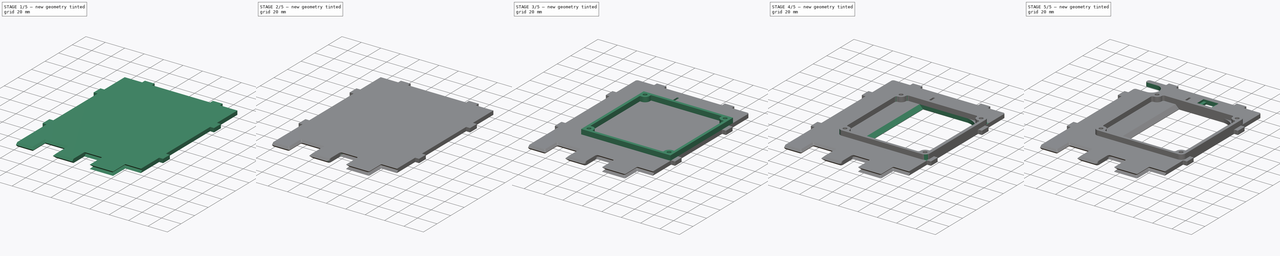
[diagram: build sequence overview — one tinted view per stage of 5, left to right]
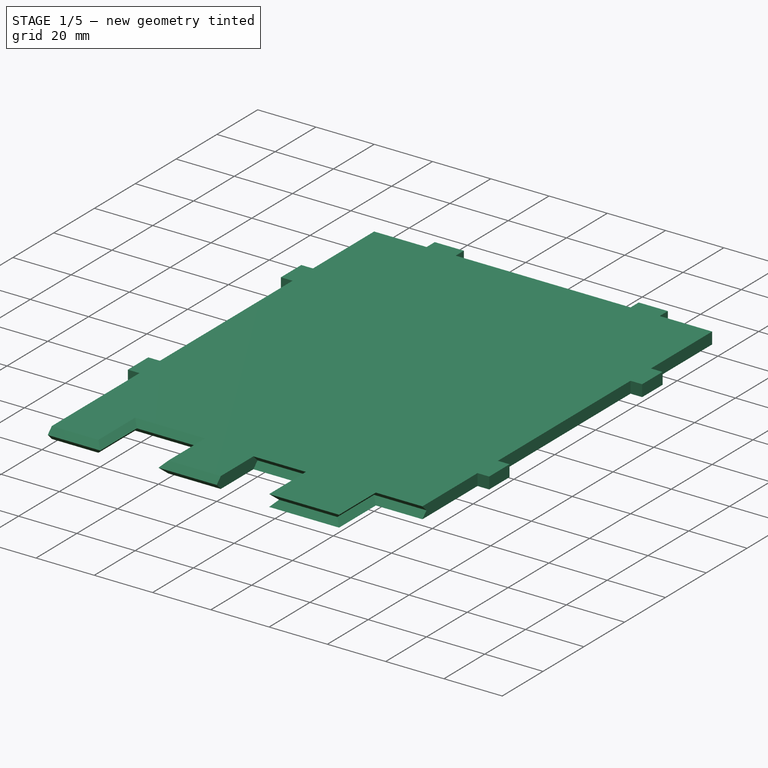
[diagram: stage 1 of 5 — iso view after this stage's code; geometry added in this stage tinted green]
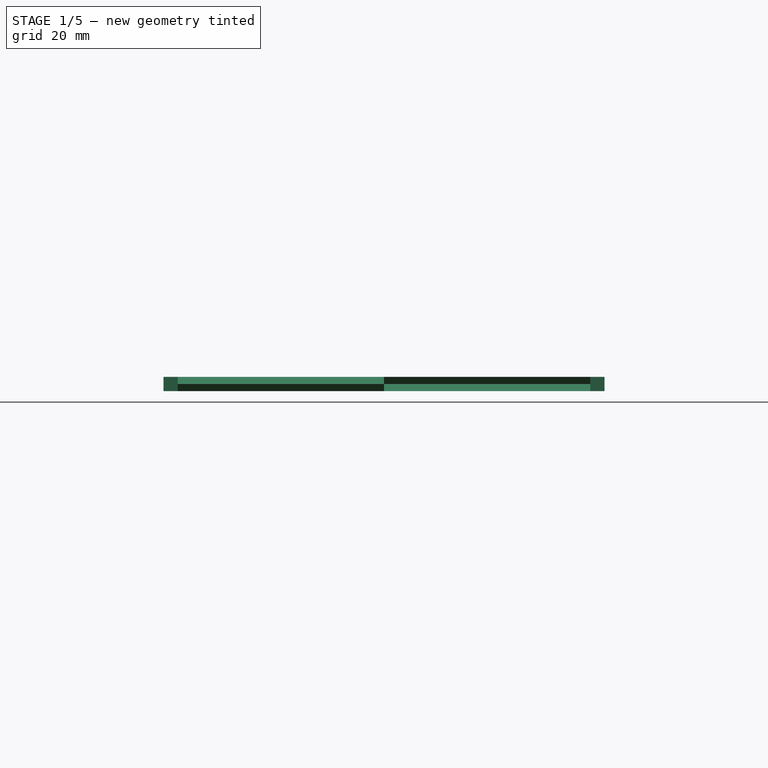
[diagram: stage 1 of 5 — front view after this stage's code; geometry added in this stage tinted green]
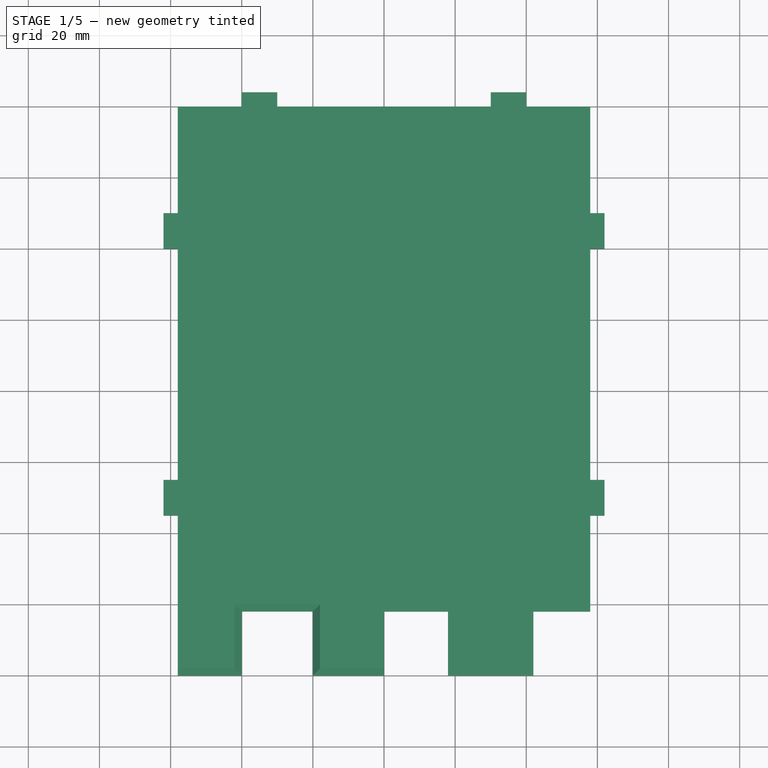
[diagram: stage 1 of 5 — top view after this stage's code; geometry added in this stage tinted green]
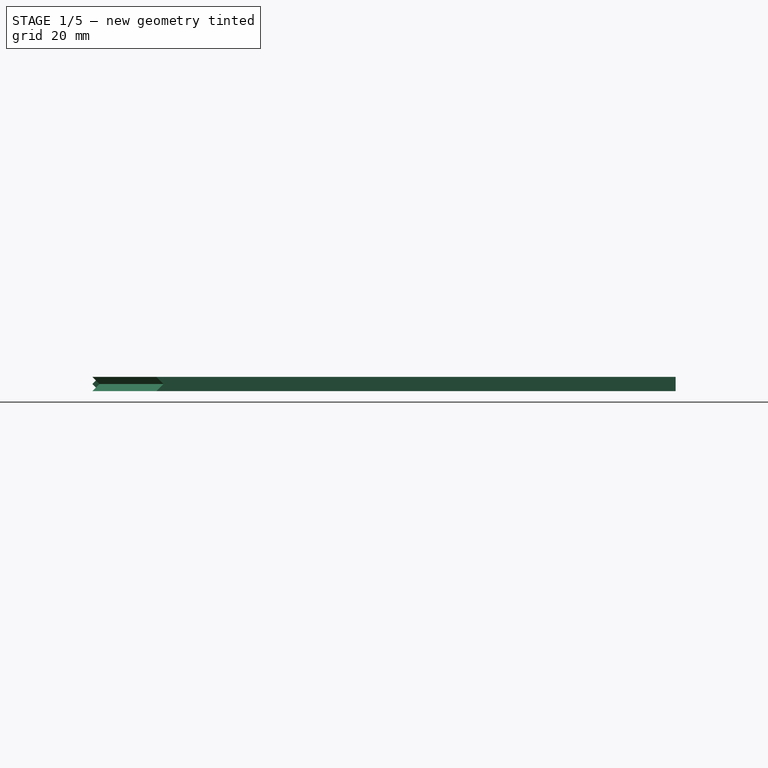
[diagram: stage 1 of 5 — right view after this stage's code; geometry added in this stage tinted green]
FCSTD DOCUMENT  (FreeCAD 0.18R16131 (Git))
Label: HBlock3_1
License: All rights reserved
LicenseURL: http://en.wikipedia.org/wiki/All_rights_reserved
objects: Sketcher::SketchObject×12, PartDesign::Fillet×10, PartDesign::Pocket×7, PartDesign::Plane×3, PartDesign::Pad×2, PartDesign::SubtractiveLoft×1, PartDesign::Chamfer×1, PartDesign::Body×1, App::Part×1
note: 47 computed .brp shape members not serialized (recipe doc carries the construction recipe); baked Part::Feature solids carry a one-line shape summary decoded from their .brp

FEATURE [Sketcher::SketchObject] Sketch
  MapMode = 5
  Support = -> [XY_Plane001]
  sketch-geometry (4):
    g0: LineSegment StartX=-62 StartY=0 StartZ=0 EndX=62 EndY=0 EndZ=0
    g1: LineSegment StartX=62 StartY=0 StartZ=0 EndX=62 EndY=164 EndZ=0
    g2: LineSegment StartX=62 StartY=164 StartZ=0 EndX=-62 EndY=164 EndZ=0
    g3: LineSegment StartX=-62 StartY=164 StartZ=0 EndX=-62 EndY=0 EndZ=0
  constraints (11):
    c: Coincident(g0,g1)
    c: Coincident(g1,g2)
    c: Coincident(g2,g3)
    c: Coincident(g3,g0)
    c: Horizontal(g0)
    c: Vertical(g1)
    c: Vertical(g3)
    c: PointOnObject(g0,g-1)
    c: Symmetric(g2,g1,g-2)
    c: Distance(g2) = 124
    c: Distance(g3) = 164
FEATURE [PartDesign::Pad] Pad
  Length = 4
  Length2 = 100
  Midplane = true
  Profile = -> Sketch
  Type = 0
FEATURE [Sketcher::SketchObject] Sketch001  label="NotchMid_Sketch"
  MapMode = 5
  Support = -> [XY_Plane001]
  sketch-geometry (14):
    g0: LineSegment StartX=-40 StartY=0 StartZ=0 EndX=-40 EndY=18 EndZ=0
    g1: LineSegment StartX=-40 StartY=18 StartZ=0 EndX=-20 EndY=18 EndZ=0
    g2: LineSegment StartX=-20 StartY=18 StartZ=0 EndX=-20 EndY=0 EndZ=0
    g3: LineSegment StartX=-20 StartY=0 StartZ=0 EndX=0 EndY=0 EndZ=0
    g4: LineSegment StartX=0 StartY=0 StartZ=0 EndX=0 EndY=20 EndZ=0
    g5: LineSegment StartX=0 StartY=20 StartZ=0 EndX=20 EndY=20 EndZ=0
    g6: LineSegment StartX=20 StartY=20 StartZ=0 EndX=20 EndY=2 EndZ=0
    g7: LineSegment StartX=20 StartY=2 StartZ=0 EndX=40 EndY=2 EndZ=0
    g8: LineSegment StartX=40 StartY=2 StartZ=0 EndX=40 EndY=20 EndZ=0
    g9: LineSegment StartX=40 StartY=20 StartZ=0 EndX=70 EndY=20 EndZ=0
    g10: LineSegment StartX=-40 StartY=0 StartZ=0 EndX=-70 EndY=0 EndZ=0
    g11: LineSegment StartX=-70 StartY=0 StartZ=0 EndX=-70 EndY=-20 EndZ=0
    g12: LineSegment StartX=-70 StartY=-20 StartZ=0 EndX=70 EndY=-20 EndZ=0
    g13: LineSegment StartX=70 StartY=-20 StartZ=0 EndX=70 EndY=20 EndZ=0
  constraints (40):
    c: PointOnObject(g0,g-1)
    c: Vertical(g0)
    c: Coincident(g1,g0)
    c: Horizontal(g1)
    c: Coincident(g2,g1)
    c: Vertical(g2)
    c: Coincident(g3,g2)
    c: Coincident(g3,g-1)
    c: Coincident(g4,g3)
    c: PointOnObject(g4,g-2)
    c: Coincident(g5,g4)
    c: Horizontal(g5)
    c: Coincident(g6,g5)
    c: Vertical(g6)
    c: Coincident(g7,g6)
    c: Coincident(g8,g7)
    c: Vertical(g8)
    c: Coincident(g9,g8)
    c: Horizontal(g9)
    c: Coincident(g10,g0)
    c: PointOnObject(g10,g-1)
    c: Equal(g0,g2)
    c: Equal(g6,g8)
    c: Coincident(g11,g10)
    c: Vertical(g11)
    c: Coincident(g12,g11)
    c: Coincident(g13,g12)
    c: Coincident(g13,g9)
    c: Vertical(g13)
    c: Distance(g12) = 140
    c: Distance(g0) = 18
    c: Distance(g11) = 20
    c: Symmetric(g11,g12,g-2)
    c: Distance(g1) = 20
    c: Distance(g3) = 20
    c: Distance(g5) = 20
    c: Distance(g7) = 20
    c: Distance(g8) = 18
    c: Horizontal(g7)
    c: DistanceY(g-1,g7) = 2
FEATURE [PartDesign::Plane] DatumPlane  label="NotchTop_Plane"
  AttachmentOffset = pos=(0,0,2) rot=(0,0,1;0rad)
  Length = 153.378
  MapMode = 5
  Placement = pos=(0,0,2) rot=(0,0,1;0rad)
  ResizeMode = 0
  Support = -> [XY_Plane001]
  Width = 203.378
FEATURE [PartDesign::Plane] DatumPlane001  label="NotchBottom_Plane"
  AttachmentOffset = pos=(0,0,-2) rot=(0,0,1;0rad)
  Length = 153.378
  MapMode = 5
  Placement = pos=(0,0,-2) rot=(0,0,1;0rad)
  ResizeMode = 0
  Support = -> [XY_Plane001]
  Width = 203.378
FEATURE [Sketcher::SketchObject] Sketch002  label="NotchTop_Sketch"
  MapMode = 5
  Placement = pos=(0,0,2) rot=(0,0,1;0rad)
  Support = -> [DatumPlane]
  sketch-geometry (14):
    g0: LineSegment StartX=-42 StartY=2 StartZ=0 EndX=-42 EndY=20 EndZ=0
    g1: LineSegment StartX=-42 StartY=20 StartZ=0 EndX=-18 EndY=20 EndZ=0
    g2: LineSegment StartX=-18 StartY=20 StartZ=0 EndX=-18 EndY=2 EndZ=0
    g3: LineSegment StartX=-18 StartY=2 StartZ=0 EndX=0 EndY=2 EndZ=0
    g4: LineSegment StartX=0 StartY=2 StartZ=0 EndX=0 EndY=18 EndZ=0
    g5: LineSegment StartX=0 StartY=18 StartZ=0 EndX=18 EndY=18 EndZ=0
    g6: LineSegment StartX=18 StartY=18 StartZ=0 EndX=18 EndY=0 EndZ=0
    g7: LineSegment StartX=18 StartY=0 StartZ=0 EndX=42 EndY=0 EndZ=0
    g8: LineSegment StartX=42 StartY=0 StartZ=0 EndX=42 EndY=18 EndZ=0
    g9: LineSegment StartX=42 StartY=18 StartZ=0 EndX=70 EndY=18 EndZ=0
    g10: LineSegment StartX=-42 StartY=2 StartZ=0 EndX=-70 EndY=2 EndZ=0
    g11: LineSegment StartX=-70 StartY=2 StartZ=0 EndX=-70 EndY=-18 EndZ=0
    g12: LineSegment StartX=-70 StartY=-18 StartZ=0 EndX=70 EndY=-18 EndZ=0
    g13: LineSegment StartX=70 StartY=-18 StartZ=0 EndX=70 EndY=18 EndZ=0
  constraints (41):
    c: Vertical(g0)
    c: Coincident(g1,g0)
    c: Horizontal(g1)
    c: Coincident(g2,g1)
    c: Vertical(g2)
    c: Coincident(g3,g2)
    c: PointOnObject(g4,g-2)
    c: Coincident(g5,g4)
    c: Horizontal(g5)
    c: Coincident(g6,g5)
    c: Vertical(g6)
    c: Coincident(g7,g6)
    c: Coincident(g8,g7)
    c: Vertical(g8)
    c: Coincident(g9,g8)
    c: Horizontal(g9)
    c: Coincident(g10,g0)
    c: Equal(g0,g2)
    c: Equal(g6,g8)
    c: Coincident(g11,g10)
    c: Vertical(g11)
    c: Coincident(g12,g11)
    c: Coincident(g13,g12)
    c: Coincident(g13,g9)
    c: Vertical(g13)
    c: Distance(g12) = 140
    c: Distance(g0) = 18
    c: Distance(g11) = 20
    c: Symmetric(g11,g12,g-2)
    c: Distance(g1) = 24
    c: Distance(g3) = 18
    c: Distance(g5) = 18
    c: Distance(g7) = 24
    c: Distance(g8) = 18
    c: Horizontal(g7)
    c: PointOnObject(g7,g-1)
    c: Horizontal(g10)
    c: DistanceY(g-1,g0) = 2
    c: Vertical(g4)
    c: Coincident(g4,g3)
    c: Horizontal(g3)
FEATURE [Sketcher::SketchObject] Sketch003  label="NotchBottom_Sketch"
  MapMode = 5
  Placement = pos=(0,0,-2) rot=(0,0,1;0rad)
  Support = -> [DatumPlane001]
  sketch-geometry (14):
    g0: LineSegment StartX=-42 StartY=2 StartZ=0 EndX=-42 EndY=20 EndZ=0
    g1: LineSegment StartX=-42 StartY=20 StartZ=0 EndX=-18 EndY=20 EndZ=0
    g2: LineSegment StartX=-18 StartY=20 StartZ=0 EndX=-18 EndY=2 EndZ=0
    g3: LineSegment StartX=-18 StartY=2 StartZ=0 EndX=0 EndY=2 EndZ=0
    g4: LineSegment StartX=0 StartY=2 StartZ=0 EndX=0 EndY=18 EndZ=0
    g5: LineSegment StartX=0 StartY=18 StartZ=0 EndX=18 EndY=18 EndZ=0
    g6: LineSegment StartX=18 StartY=18 StartZ=0 EndX=18 EndY=0 EndZ=0
    g7: LineSegment StartX=18 StartY=0 StartZ=0 EndX=42 EndY=0 EndZ=0
    g8: LineSegment StartX=42 StartY=0 StartZ=0 EndX=42 EndY=18 EndZ=0
    g9: LineSegment StartX=42 StartY=18 StartZ=0 EndX=70 EndY=18 EndZ=0
    g10: LineSegment StartX=-42 StartY=2 StartZ=0 EndX=-70 EndY=2 EndZ=0
    g11: LineSegment StartX=-70 StartY=2 StartZ=0 EndX=-70 EndY=-18 EndZ=0
    g12: LineSegment StartX=-70 StartY=-18 StartZ=0 EndX=70 EndY=-18 EndZ=0
    g13: LineSegment StartX=70 StartY=-18 StartZ=0 EndX=70 EndY=18 EndZ=0
  constraints (41):
    c: Vertical(g0)
    c: Coincident(g1,g0)
    c: Horizontal(g1)
    c: Coincident(g2,g1)
    c: Vertical(g2)
    c: Coincident(g3,g2)
    c: PointOnObject(g4,g-2)
    c: Coincident(g5,g4)
    c: Horizontal(g5)
    c: Coincident(g6,g5)
    c: Vertical(g6)
    c: Coincident(g7,g6)
    c: Coincident(g8,g7)
    c: Vertical(g8)
    c: Coincident(g9,g8)
    c: Horizontal(g9)
    c: Coincident(g10,g0)
    c: Equal(g0,g2)
    c: Equal(g6,g8)
    c: Coincident(g11,g10)
    c: Vertical(g11)
    c: Coincident(g12,g11)
    c: Coincident(g13,g12)
    c: Coincident(g13,g9)
    c: Vertical(g13)
    c: Distance(g12) = 140
    c: Distance(g0) = 18
    c: Distance(g11) = 20
    c: Symmetric(g11,g12,g-2)
    c: Distance(g1) = 24
    c: Distance(g3) = 18
    c: Distance(g5) = 18
    c: Distance(g7) = 24
    c: Distance(g8) = 18
    c: Horizontal(g7)
    c: PointOnObject(g7,g-1)
    c: Horizontal(g10)
    c: DistanceY(g-1,g0) = 2
    c: Vertical(g4)
    c: Coincident(g4,g3)
    c: Horizontal(g3)
FEATURE [PartDesign::SubtractiveLoft] SubtractiveLoft
  BaseFeature = -> Pad
  Closed = false
  Profile = -> Sketch003
  Ruled = true
  Sections = -> [Sketch001,Sketch002]
FEATURE [Sketcher::SketchObject] Sketch004
  MapMode = 5
  Support = -> [XY_Plane001]
  sketch-geometry (30):
    g0: LineSegment StartX=-58 StartY=45 StartZ=0 EndX=-62 EndY=45 EndZ=0
    g1: LineSegment StartX=-62 StartY=45 StartZ=0 EndX=-62 EndY=55 EndZ=0
    g2: LineSegment StartX=-62 StartY=55 StartZ=0 EndX=-58 EndY=55 EndZ=0
    g3: LineSegment StartX=-58 StartY=55 StartZ=0 EndX=-58 EndY=120 EndZ=0
    g4: LineSegment StartX=-58 StartY=120 StartZ=0 EndX=-62 EndY=120 EndZ=0
    g5: LineSegment StartX=-62 StartY=120 StartZ=0 EndX=-62 EndY=130 EndZ=0
    g6: LineSegment StartX=-62 StartY=130 StartZ=0 EndX=-58 EndY=130 EndZ=0
    g7: LineSegment StartX=-58 StartY=130 StartZ=0 EndX=-58 EndY=164 EndZ=0
    g8: LineSegment StartX=-58 StartY=164 StartZ=0 EndX=-88 EndY=164 EndZ=0
    g9: LineSegment StartX=-88 StartY=164 StartZ=0 EndX=-88 EndY=40 EndZ=0
    g10: LineSegment [constr] StartX=-88 StartY=40 StartZ=0 EndX=-58 EndY=40 EndZ=0
    g11: LineSegment StartX=-58 StartY=45 StartZ=0 EndX=-58 EndY=40 EndZ=0
    g12: LineSegment StartX=58 StartY=45 StartZ=0 EndX=62 EndY=45 EndZ=0
    g13: LineSegment StartX=62 StartY=45 StartZ=0 EndX=62 EndY=55 EndZ=0
    g14: LineSegment StartX=62 StartY=55 StartZ=0 EndX=58 EndY=55 EndZ=0
    g15: LineSegment StartX=58 StartY=55 StartZ=0 EndX=58 EndY=120 EndZ=0
    g16: LineSegment StartX=58 StartY=120 StartZ=0 EndX=62 EndY=120 EndZ=0
    g17: LineSegment StartX=62 StartY=120 StartZ=0 EndX=62 EndY=130 EndZ=0
    g18: LineSegment StartX=62 StartY=130 StartZ=0 EndX=58 EndY=130 EndZ=0
    g19: LineSegment StartX=58 StartY=130 StartZ=0 EndX=58 EndY=164 EndZ=0
    g20: LineSegment StartX=58 StartY=164 StartZ=0 EndX=88 EndY=164 EndZ=0
    g21: LineSegment StartX=88 StartY=164 StartZ=0 EndX=88 EndY=40 EndZ=0
    g22: LineSegment [constr] StartX=88 StartY=40 StartZ=0 EndX=58 EndY=40 EndZ=0
    g23: LineSegment StartX=58 StartY=45 StartZ=0 EndX=58 EndY=40 EndZ=0
    g24: LineSegment StartX=-88 StartY=40 StartZ=0 EndX=-88 EndY=0 EndZ=0
    g25: LineSegment StartX=-88 StartY=0 StartZ=0 EndX=-58 EndY=0 EndZ=0
    g26: LineSegment StartX=-58 StartY=0 StartZ=0 EndX=-58 EndY=40 EndZ=0
    g27: LineSegment StartX=88 StartY=40 StartZ=0 EndX=88 EndY=0 EndZ=0
    g28: LineSegment StartX=88 StartY=0 StartZ=0 EndX=58 EndY=0 EndZ=0
    g29: LineSegment StartX=58 StartY=0 StartZ=0 EndX=58 EndY=40 EndZ=0
  constraints (87):
    c: Coincident(g1,g0)
    c: Vertical(g1)
    c: Coincident(g2,g1)
    c: Horizontal(g2)
    c: Coincident(g3,g2)
    c: Vertical(g3)
    c: Coincident(g4,g3)
    c: Coincident(g5,g4)
    c: Vertical(g5)
    c: Coincident(g6,g5)
    c: Horizontal(g6)
    c: Coincident(g7,g6)
    c: Vertical(g7)
    c: Coincident(g8,g7)
    c: Horizontal(g8)
    c: Coincident(g9,g8)
    c: Vertical(g9)
    c: Coincident(g10,g9)
    c: Horizontal(g10)
    c: Horizontal(g0)
    c: Coincident(g11,g0)
    c: Coincident(g11,g10)
    c: Vertical(g11)
    c: Horizontal(g4)
    c: Equal(g0,g2)
    c: Equal(g2,g4)
    c: Equal(g4,g6)
    c: Equal(g5,g1)
    c: Distance(g6) = 4
    c: Distance(g5) = 10
    c: Distance(g11) = 5
    c: Distance(g7) = 34
    c: Distance(g8) = 30
    c: Distance(g9) = 124
    c: Coincident(g13,g12)
    c: Vertical(g13)
    c: Coincident(g14,g13)
    c: Horizontal(g14)
    c: Coincident(g15,g14)
    c: Vertical(g15)
    c: Coincident(g16,g15)
    c: Coincident(g17,g16)
    c: Vertical(g17)
    c: Coincident(g18,g17)
    c: Horizontal(g18)
    c: Coincident(g19,g18)
    c: Vertical(g19)
    c: Coincident(g20,g19)
    c: Horizontal(g20)
    c: Coincident(g21,g20)
    c: Vertical(g21)
    c: Coincident(g22,g21)
    c: Horizontal(g22)
    c: Horizontal(g12)
    c: Coincident(g23,g12)
    c: Coincident(g23,g22)
    c: Vertical(g23)
    c: Horizontal(g16)
    c: Equal(g12,g14)
    c: Equal(g14,g16)
    c: Equal(g16,g18)
    c: Equal(g17,g13)
    c: Distance(g18) = 4
    c: Distance(g17) = 10
    c: Distance(g23) = 5
    c: Distance(g19) = 34
    c: Distance(g20) = 30
    c: Distance(g21) = 124
    c: Symmetric(g22,g10,g-2)
    c: Distance(g10,g22) = 116
    c: DistanceY(g-1,g9) = 40
    c: Coincident(g24,g9)
    c: PointOnObject(g24,g-1)
    c: Vertical(g24)
    c: Coincident(g25,g24)
    c: Horizontal(g25)
    c: Coincident(g26,g25)
    c: Coincident(g26,g10)
    c: Vertical(g26)
    c: Coincident(g27,g21)
    c: PointOnObject(g27,g-1)
    c: Coincident(g28,g27)
    c: Horizontal(g28)
    c: Coincident(g29,g28)
    c: Coincident(g29,g22)
    c: Vertical(g29)
    c: Vertical(g27)
FEATURE [PartDesign::Pocket] Pocket
  BaseFeature = -> SubtractiveLoft
  Length = 5
  Length2 = 100
  Midplane = true
  Profile = -> Sketch004
  Type = 1
FEATURE [Sketcher::SketchObject] Sketch005
  MapMode = 5
  Support = -> [XY_Plane001]
  sketch-geometry (12):
    g0: LineSegment StartX=-60 StartY=160 StartZ=0 EndX=-40 EndY=160 EndZ=0
    g1: LineSegment StartX=-40 StartY=160 StartZ=0 EndX=-40 EndY=164 EndZ=0
    g2: LineSegment StartX=-40 StartY=164 StartZ=0 EndX=-30 EndY=164 EndZ=0
    g3: LineSegment StartX=-30 StartY=164 StartZ=0 EndX=-30 EndY=160 EndZ=0
    g4: LineSegment StartX=-30 StartY=160 StartZ=0 EndX=30 EndY=160 EndZ=0
    g5: LineSegment StartX=30 StartY=160 StartZ=0 EndX=30 EndY=164 EndZ=0
    g6: LineSegment StartX=30 StartY=164 StartZ=0 EndX=40 EndY=164 EndZ=0
    g7: LineSegment StartX=40 StartY=164 StartZ=0 EndX=40 EndY=160 EndZ=0
    g8: LineSegment StartX=40 StartY=160 StartZ=0 EndX=60 EndY=160 EndZ=0
    g9: LineSegment StartX=60 StartY=160 StartZ=0 EndX=60 EndY=170 EndZ=0
    g10: LineSegment StartX=60 StartY=170 StartZ=0 EndX=-60 EndY=170 EndZ=0
    g11: LineSegment StartX=-60 StartY=170 StartZ=0 EndX=-60 EndY=160 EndZ=0
  constraints (34):
    c: Horizontal(g0)
    c: Coincident(g1,g0)
    c: Vertical(g1)
    c: Coincident(g2,g1)
    c: Horizontal(g2)
    c: Coincident(g3,g2)
    c: Vertical(g3)
    c: Coincident(g4,g3)
    c: Coincident(g5,g4)
    c: Coincident(g6,g5)
    c: Horizontal(g6)
    c: Coincident(g7,g6)
    c: Vertical(g7)
    c: Coincident(g8,g7)
    c: Horizontal(g8)
    c: Coincident(g9,g8)
    c: Vertical(g9)
    c: Coincident(g10,g9)
    c: Coincident(g11,g10)
    c: Coincident(g11,g0)
    c: Vertical(g5)
    c: Vertical(g11)
    c: Equal(g1,g3)
    c: Equal(g3,g5)
    c: Equal(g5,g7)
    c: Equal(g2,g6)
    c: Distance(g11) = 10
    c: Distance(g1) = 4
    c: Distance(g2) = 10
    c: Symmetric(g3,g4,g-2)
    c: Distance(g4,g3) = 60
    c: Symmetric(g10,g9,g-2)
    c: Distance(g10) = 120
    c: Distance(g-1,g4) = 160
FEATURE [PartDesign::Pocket] Pocket001
  BaseFeature = -> Pocket
  Length = 5
  Length2 = 100
  Midplane = true
  Profile = -> Sketch005
  Type = 1
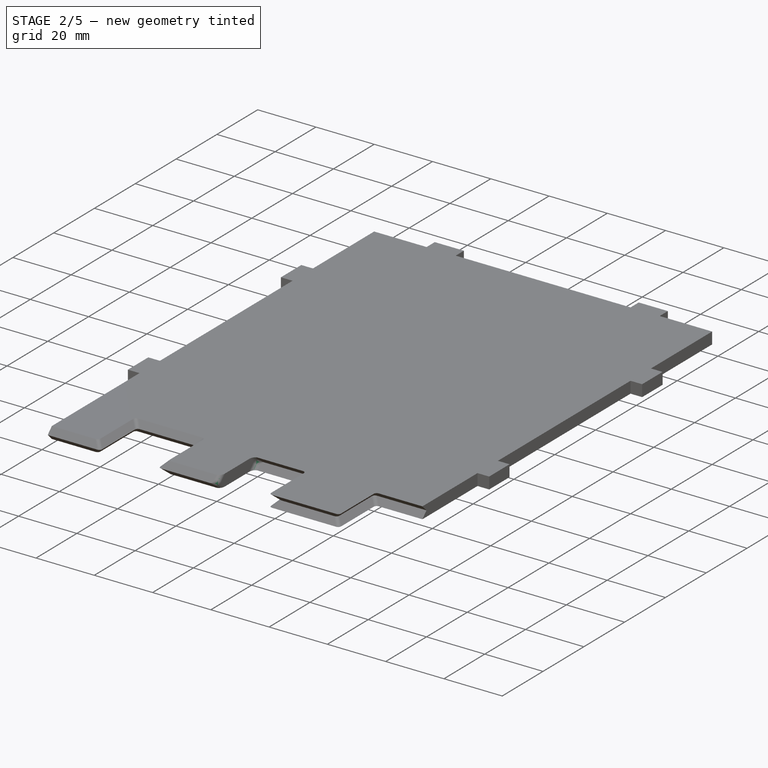
[diagram: stage 2 of 5 — iso view after this stage's code; geometry added in this stage tinted green]
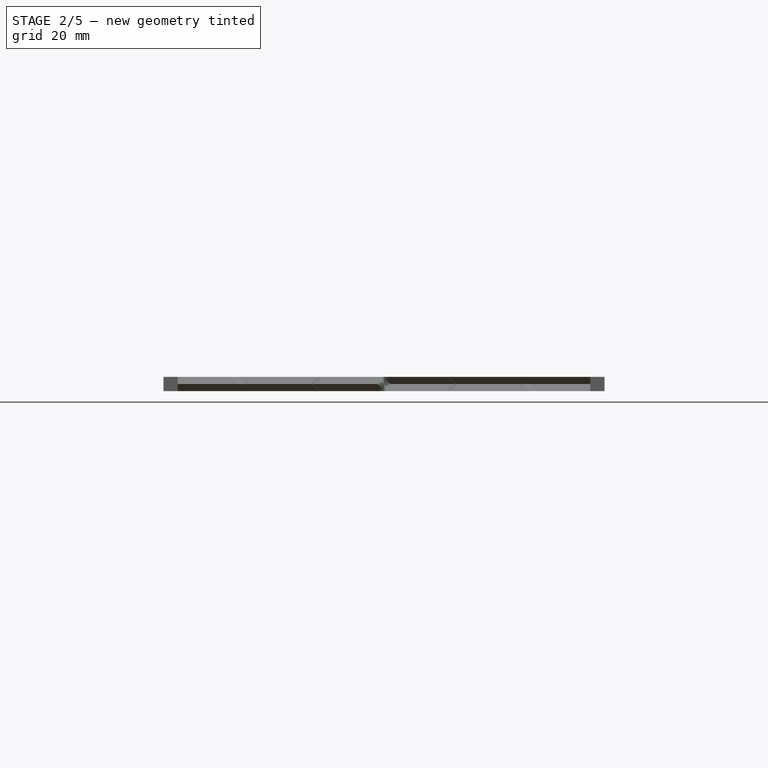
[diagram: stage 2 of 5 — front view after this stage's code; geometry added in this stage tinted green]
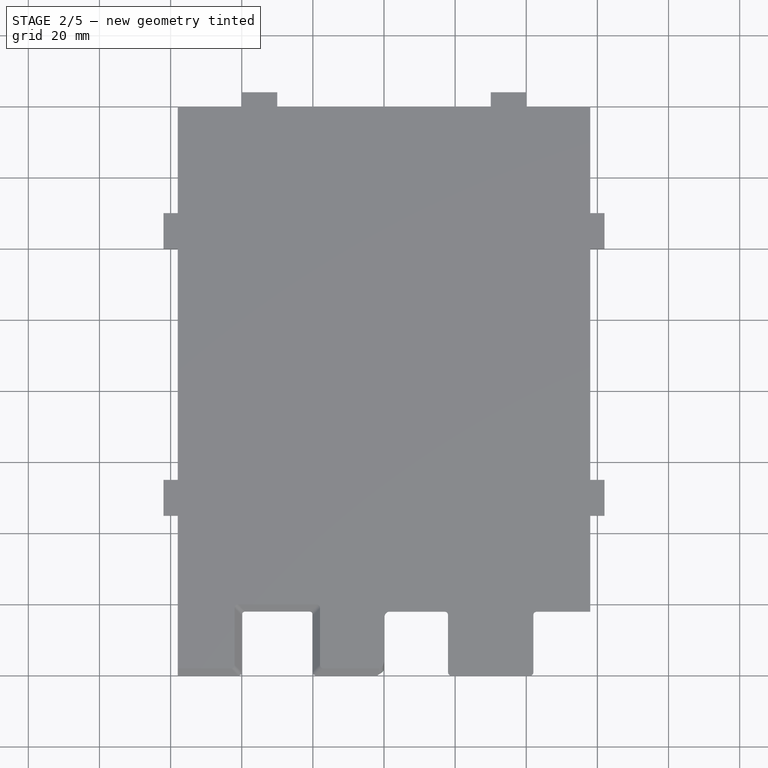
[diagram: stage 2 of 5 — top view after this stage's code; geometry added in this stage tinted green]
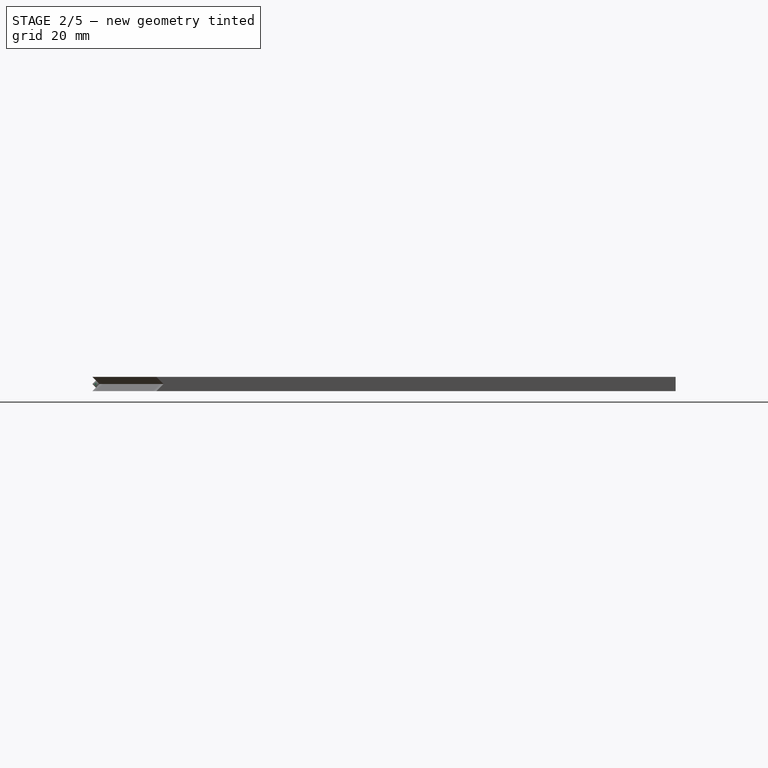
[diagram: stage 2 of 5 — right view after this stage's code; geometry added in this stage tinted green]
FEATURE [PartDesign::Fillet] Fillet
  Base = -> Pocket001 [Edge125,Edge123,Edge143,Edge142,Edge141,Edge140,Edge41,Edge43]
  BaseFeature = -> Pocket001
  Radius = 1.47
FEATURE [PartDesign::Fillet] Fillet001
  Base = -> Fillet [Edge73,Edge70,Edge63,Edge53]
  BaseFeature = -> Fillet
  Radius = 1.47
FEATURE [PartDesign::Fillet] Fillet002
  Base = -> Fillet001 [Edge161,Edge167,Edge171,Edge175]
  BaseFeature = -> Fillet001
  Radius = 1.47
FEATURE [PartDesign::Fillet] Fillet003
  Base = -> Fillet002 [Edge1,Edge10,Edge72,Edge145]
  BaseFeature = -> Fillet002
  Radius = 1.47
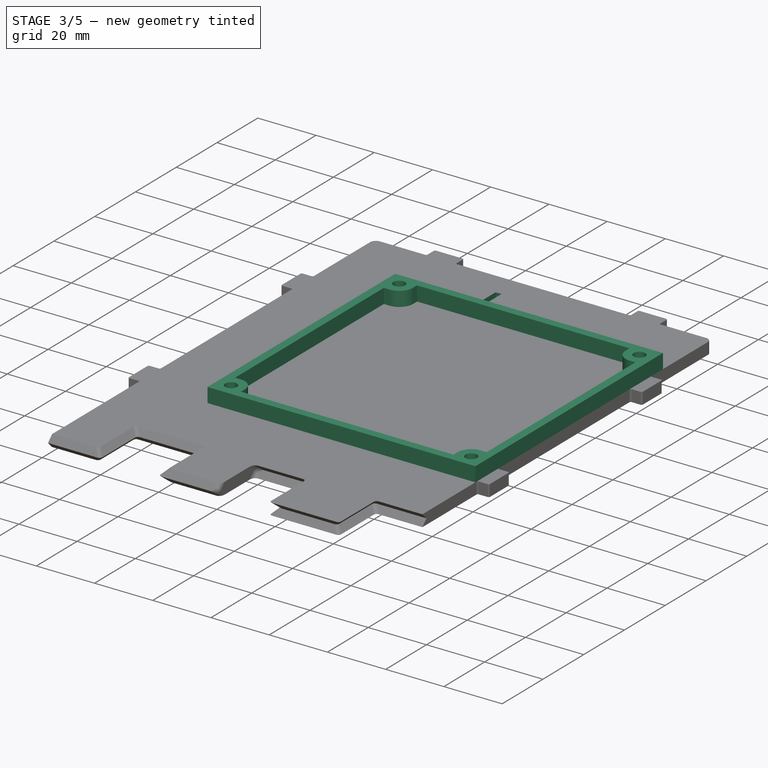
[diagram: stage 3 of 5 — iso view after this stage's code; geometry added in this stage tinted green]
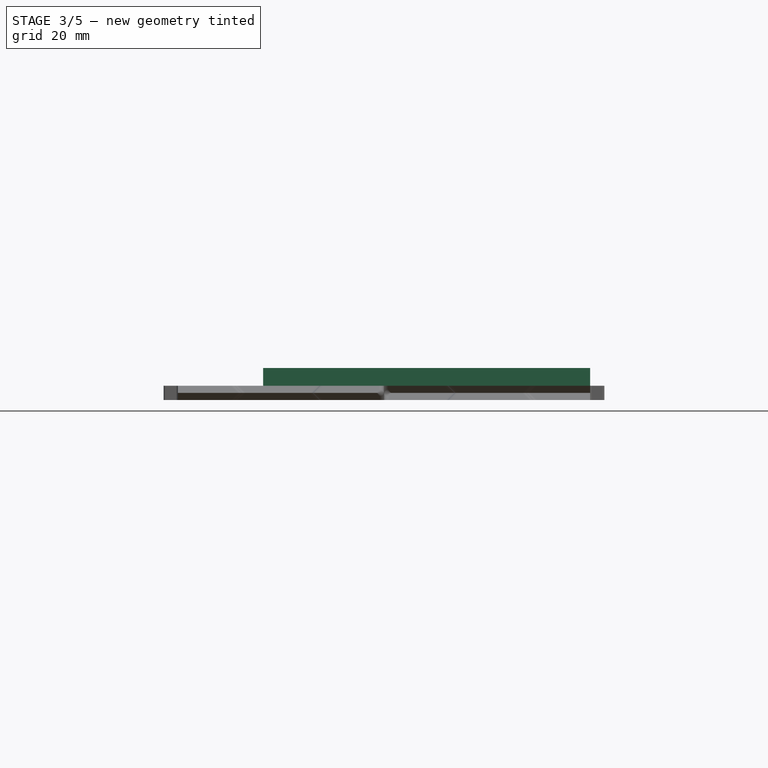
[diagram: stage 3 of 5 — front view after this stage's code; geometry added in this stage tinted green]
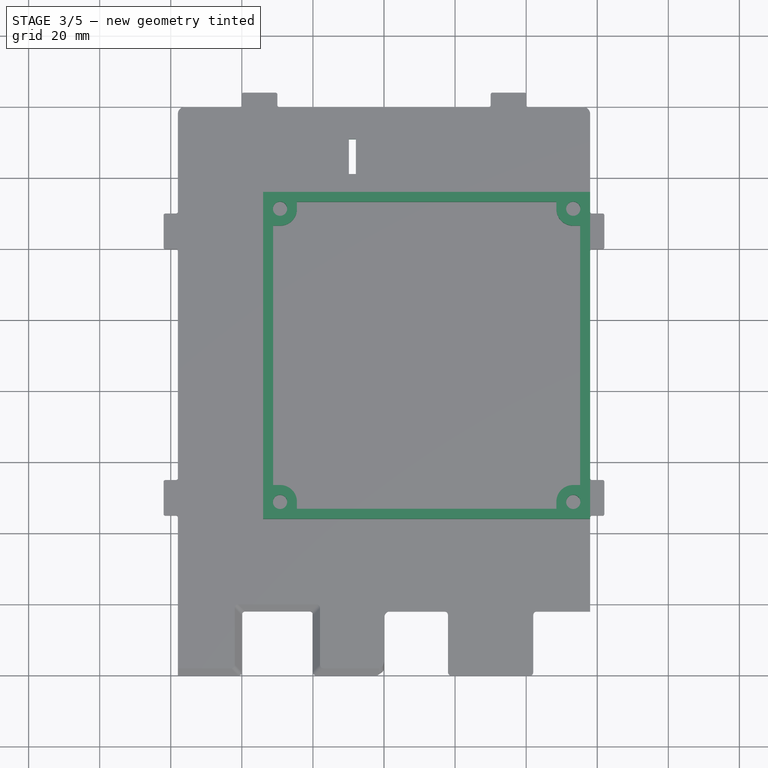
[diagram: stage 3 of 5 — top view after this stage's code; geometry added in this stage tinted green]
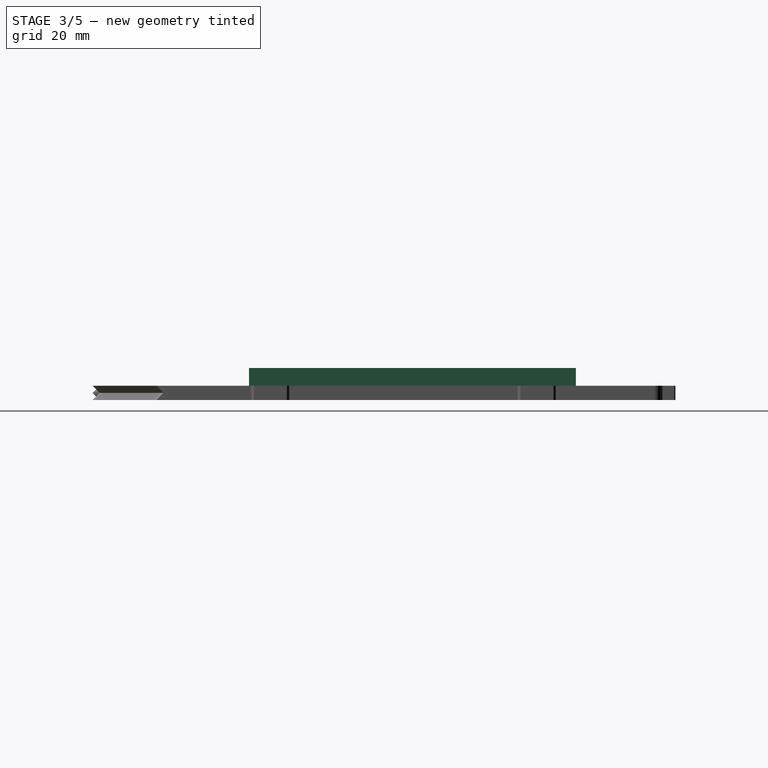
[diagram: stage 3 of 5 — right view after this stage's code; geometry added in this stage tinted green]
FEATURE [PartDesign::Fillet] Fillet004
  Base = -> Fillet003 [Edge132,Edge150]
  BaseFeature = -> Fillet003
  Radius = 2
FEATURE [PartDesign::Fillet] Fillet005
  Base = -> Fillet004 [Edge83,Edge78,Edge75,Edge71,Edge67,Edge62,Edge59,Edge55,Edge60,Edge65,Edge69,Edge73,Edge77,Edge81,Edge85,Edge89,Edge102,Edge106,Edge110,Edge114,Edge118,Edge122,Edge126,Edge131]
  BaseFeature = -> Fillet004
  Radius = 0.5
FEATURE [PartDesign::Plane] DatumPlane002
  AttachmentOffset = pos=(12,90,2) rot=(0,0,1;0rad)
  Length = 153.378
  MapMode = 5
  Placement = pos=(12,90,2) rot=(0,0,1;0rad)
  ResizeMode = 0
  Support = -> [XY_Plane001]
  Width = 203.378
FEATURE [Sketcher::SketchObject] Sketch006
  MapMode = 5
  Placement = pos=(12,90,2) rot=(0,0,1;0rad)
  Support = -> [DatumPlane002]
  sketch-geometry (36):
    g0: LineSegment StartX=-46 StartY=46 StartZ=0 EndX=46 EndY=46 EndZ=0
    g1: LineSegment StartX=46 StartY=46 StartZ=0 EndX=46 EndY=-46 EndZ=0
    g2: LineSegment StartX=46 StartY=-46 StartZ=0 EndX=-46 EndY=-46 EndZ=0
    g3: LineSegment StartX=-46 StartY=-46 StartZ=0 EndX=-46 EndY=46 EndZ=0
    g4: LineSegment StartX=-43.2 StartY=36.5 StartZ=0 EndX=-36.5 EndY=36.5 EndZ=0
    g5: LineSegment StartX=-36.5 StartY=36.5 StartZ=0 EndX=-36.5 EndY=43.2 EndZ=0
    g6: LineSegment StartX=-36.5 StartY=43.2 StartZ=0 EndX=36.5 EndY=43.2 EndZ=0
    g7: LineSegment StartX=36.5 StartY=43.2 StartZ=0 EndX=36.5 EndY=36.5 EndZ=0
    g8: LineSegment StartX=36.5 StartY=36.5 StartZ=0 EndX=43.2 EndY=36.5 EndZ=0
    g9: LineSegment StartX=43.2 StartY=36.5 StartZ=0 EndX=43.2 EndY=-36.5 EndZ=0
    g10: LineSegment StartX=43.2 StartY=-36.5 StartZ=0 EndX=36.5 EndY=-36.5 EndZ=0
    g11: LineSegment StartX=36.5 StartY=-36.5 StartZ=0 EndX=36.5 EndY=-43.2 EndZ=0
    g12: LineSegment StartX=36.5 StartY=-43.2 StartZ=0 EndX=-36.5 EndY=-43.2 EndZ=0
    g13: LineSegment StartX=-36.5 StartY=-43.2 StartZ=0 EndX=-36.5 EndY=-36.5 EndZ=0
    g14: LineSegment StartX=-36.5 StartY=-36.5 StartZ=0 EndX=-43.2 EndY=-36.5 EndZ=0
    g15: LineSegment StartX=-43.2 StartY=-36.5 StartZ=0 EndX=-43.2 EndY=36.5 EndZ=0
    g16: LineSegment [constr] StartX=-43.2 StartY=36.5 StartZ=0 EndX=-46 EndY=36.5 EndZ=0
    g17: LineSegment [constr] StartX=-36.5 StartY=43.2 StartZ=0 EndX=-36.5 EndY=46 EndZ=0
    g18: LineSegment [constr] StartX=-36.5 StartY=-43.2 StartZ=0 EndX=-36.5 EndY=-46 EndZ=0
    g19: LineSegment [constr] StartX=43.2 StartY=36.5 StartZ=0 EndX=46 EndY=36.5 EndZ=0
    g20: Circle CenterX=-41.25 CenterY=41.25 CenterZ=0 NormalX=0 NormalY=0 NormalZ=1 AngleXU=0 Radius=2
    g21: Circle CenterX=41.25 CenterY=41.25 CenterZ=0 NormalX=0 NormalY=0 NormalZ=1 AngleXU=0 Radius=2
    g22: Circle CenterX=41.25 CenterY=-41.25 CenterZ=0 NormalX=0 NormalY=0 NormalZ=1 AngleXU=0 Radius=2
    g23: Circle CenterX=-41.25 CenterY=-41.25 CenterZ=0 NormalX=0 NormalY=0 NormalZ=1 AngleXU=0 Radius=2
    g24: LineSegment [constr] StartX=-41.25 StartY=41.25 StartZ=0 EndX=41.25 EndY=41.25 EndZ=0
    g25: LineSegment [constr] StartX=41.25 StartY=41.25 StartZ=0 EndX=41.25 EndY=-41.25 EndZ=0
    g26: LineSegment [constr] StartX=41.25 StartY=-41.25 StartZ=0 EndX=-41.25 EndY=-41.25 EndZ=0
    g27: LineSegment [constr] StartX=-41.25 StartY=-41.25 StartZ=0 EndX=-41.25 EndY=41.25 EndZ=0
    g28: LineSegment [constr] StartX=-41.25 StartY=41.25 StartZ=0 EndX=-46 EndY=46 EndZ=0
    g29: LineSegment [constr] StartX=-41.25 StartY=-41.25 StartZ=0 EndX=-46 EndY=-46 EndZ=0
    g30: LineSegment [constr] StartX=41.25 StartY=-41.25 StartZ=0 EndX=46 EndY=-46 EndZ=0
    g31: LineSegment [constr] StartX=41.25 StartY=41.25 StartZ=0 EndX=46 EndY=46 EndZ=0
    g32: LineSegment [constr] StartX=-41.25 StartY=-41.25 StartZ=0 EndX=-36.5 EndY=-36.5 EndZ=0
    g33: LineSegment [constr] StartX=-36.5 StartY=36.5 StartZ=0 EndX=0 EndY=0 EndZ=0
    g34: LineSegment [constr] StartX=0 StartY=0 StartZ=0 EndX=36.5 EndY=-36.5 EndZ=0
    g35: LineSegment [constr] StartX=36.5 StartY=36.5 StartZ=0 EndX=0 EndY=0 EndZ=0
  constraints (96):
    c: Coincident(g0,g1)
    c: Coincident(g1,g2)
    c: Coincident(g2,g3)
    c: Coincident(g3,g0)
    c: Horizontal(g0)
    c: Horizontal(g2)
    c: Vertical(g1)
    c: Vertical(g3)
    c: Coincident(g5,g4)
    c: Coincident(g6,g5)
    c: Horizontal(g6)
    c: Coincident(g7,g6)
    c: Vertical(g7)
    c: Coincident(g8,g7)
    c: Coincident(g9,g8)
    c: Vertical(g9)
    c: Coincident(g10,g9)
    c: Coincident(g11,g10)
    c: Coincident(g12,g11)
    c: Horizontal(g12)
    c: Coincident(g13,g12)
    c: Vertical(g13)
    c: Coincident(g14,g13)
    c: Coincident(g15,g14)
    c: Coincident(g15,g4)
    c: Vertical(g15)
    c: Vertical(g5)
    c: Vertical(g11)
    c: Equal(g5,g7)
    c: Equal(g7,g13)
    c: Equal(g13,g11)
    c: Equal(g4,g8)
    c: Equal(g8,g14)
    c: Equal(g14,g10)
    c: Equal(g6,g15)
    c: Equal(g15,g12)
    c: Equal(g12,g9)
    c: Horizontal(g4)
    c: Horizontal(g8)
    c: Equal(g4,g5)
    c: Coincident(g16,g4)
    c: PointOnObject(g16,g3)
    c: Coincident(g17,g5)
    c: PointOnObject(g17,g0)
    c: Equal(g17,g16)
    c: Vertical(g17)
    c: Horizontal(g16)
    c: Coincident(g18,g12)
    c: PointOnObject(g18,g2)
    c: Vertical(g18)
    c: Equal(g18,g16)
    c: Coincident(g19,g8)
    c: PointOnObject(g19,g1)
    c: Horizontal(g19)
    c: Equal(g16,g19)
    c: Distance(g0) = 92
    c: Distance(g16) = 2.8
    c: Coincident(g24,g20)
    c: Coincident(g24,g21)
    c: Horizontal(g24)
    c: Coincident(g25,g21)
    c: Coincident(g25,g22)
    c: Vertical(g25)
    c: Coincident(g26,g22)
    c: Coincident(g26,g23)
    c: Horizontal(g26)
    c: Coincident(g27,g23)
    c: Coincident(g27,g20)
    c: Equal(g24,g27)
    c: Distance(g24) = 82.5
    c: Coincident(g28,g20)
    c: Coincident(g28,g0)
    c: Coincident(g29,g23)
    c: Coincident(g29,g2)
    c: Coincident(g30,g22)
    c: Coincident(g30,g1)
    c: Coincident(g31,g21)
    c: Coincident(g31,g0)
    c: Equal(g31,g30)
    c: Equal(g30,g29)
    c: Equal(g29,g28)
    c: Equal(g20,g21)
    c: Equal(g21,g22)
    c: Equal(g22,g23)
    c: Radius(g20) = 2
    c: Coincident(g32,g23)
    c: Coincident(g32,g13)
    c: Equal(g32,g29)
    c: Coincident(g33,g4)
    c: Coincident(g33,g-1)
    c: Coincident(g34,g-1)
    c: Coincident(g34,g10)
    c: Equal(g34,g33)
    c: Coincident(g35,g7)
    c: Coincident(g35,g-1)
    c: Equal(g35,g33)
FEATURE [Sketcher::SketchObject] Sketch007
  MapMode = 5
  Support = -> [XY_Plane001]
  sketch-geometry (4):
    g0: LineSegment StartX=-9.9 StartY=150.9 StartZ=0 EndX=-7.9 EndY=150.9 EndZ=0
    g1: LineSegment StartX=-7.9 StartY=150.9 StartZ=0 EndX=-7.9 EndY=141.1 EndZ=0
    g2: LineSegment StartX=-7.9 StartY=141.1 StartZ=0 EndX=-9.9 EndY=141.1 EndZ=0
    g3: LineSegment StartX=-9.9 StartY=141.1 StartZ=0 EndX=-9.9 EndY=150.9 EndZ=0
  constraints (12):
    c: Coincident(g0,g1)
    c: Coincident(g1,g2)
    c: Coincident(g2,g3)
    c: Coincident(g3,g0)
    c: Horizontal(g0)
    c: Horizontal(g2)
    c: Vertical(g1)
    c: Vertical(g3)
    c: Distance(g0) = 2
    c: Distance(g1) = 9.8
    c: DistanceX(g-2,g2) = -9.9
    c: DistanceY(g-1,g2) = 141.1
FEATURE [PartDesign::Pocket] Pocket002
  BaseFeature = -> Fillet005
  Length = 5
  Length2 = 100
  Midplane = true
  Profile = -> Sketch007
  Type = 1
FEATURE [PartDesign::Pad] Pad001
  BaseFeature = -> Pocket002
  Length = 5
  Length2 = 100
  Profile = -> Sketch006
  Type = 0
FEATURE [Sketcher::SketchObject] Sketch008
  ExternalGeometry = -> [Sketch006]
  MapMode = 5
  Placement = pos=(12,90,2) rot=(0,0,1;0rad)
  Support = -> [DatumPlane002]
  sketch-geometry (14):
    g0: ArcOfCircle CenterX=23.37 CenterY=23.37 CenterZ=0 NormalX=0 NormalY=0 NormalZ=1 AngleXU=0 Radius=20.0036 StartAngle=0.131854 EndAngle=1.43894
    g1: LineSegment [constr] StartX=37.5147 StartY=37.5147 StartZ=0 EndX=46 EndY=46 EndZ=0
    g2: LineSegment [constr] StartX=37.5147 StartY=37.5147 StartZ=0 EndX=0 EndY=0 EndZ=0
    g3: ArcOfCircle CenterX=23.37 CenterY=-23.37 CenterZ=0 NormalX=0 NormalY=0 NormalZ=1 AngleXU=0 Radius=20.0036 StartAngle=4.84425 EndAngle=6.15133
    g4: LineSegment [constr] StartX=0 StartY=0 StartZ=0 EndX=37.5147 EndY=-37.5147 EndZ=0
    g5: LineSegment [constr] StartX=37.5147 StartY=-37.5147 StartZ=0 EndX=46 EndY=-46 EndZ=0
    g6: LineSegment StartX=43.2 StartY=25.9999 StartZ=0 EndX=43.2 EndY=-25.9999 EndZ=0
    g7: LineSegment StartX=26 StartY=43.2 StartZ=0 EndX=-20 EndY=43.2 EndZ=0
    g8: LineSegment StartX=-20 StartY=43.2 StartZ=0 EndX=-20 EndY=-43.2 EndZ=0
    g9: LineSegment StartX=-20 StartY=-43.2 StartZ=0 EndX=26 EndY=-43.2 EndZ=0
    g10: Circle CenterX=-41.25 CenterY=41.25 CenterZ=0 NormalX=0 NormalY=0 NormalZ=1 AngleXU=0 Radius=2
    g11: Circle CenterX=41.25 CenterY=41.25 CenterZ=0 NormalX=0 NormalY=0 NormalZ=1 AngleXU=0 Radius=2
    g12: Circle CenterX=41.25 CenterY=-41.25 CenterZ=0 NormalX=0 NormalY=0 NormalZ=1 AngleXU=0 Radius=2
    g13: Circle CenterX=-41.25 CenterY=-41.25 CenterZ=0 NormalX=0 NormalY=0 NormalZ=1 AngleXU=0 Radius=2
  constraints (38):
    c: PointOnObject(g0,g-4)
    c: PointOnObject(g0,g-5)
    c: PointOnObject(g1,g0)
    c: Coincident(g1,g-7)
    c: Distance(g1) = 12
    c: PointOnObject(g-8,g1)
    c: Coincident(g2,g1)
    c: Coincident(g2,g-1)
    c: PointOnObject(g0,g2)
    c: DistanceX(g0,g1) = 20
    c: PointOnObject(g3,g-5)
    c: PointOnObject(g3,g-6)
    c: Coincident(g4,g-1)
    c: PointOnObject(g-10,g4)
    c: PointOnObject(g4,g3)
    c: Coincident(g5,g4)
    c: Coincident(g5,g-9)
    c: Distance(g5) = 12
    c: PointOnObject(g3,g4)
    c: DistanceX(g3,g5) = 20
    c: Coincident(g6,g0)
    c: Coincident(g6,g3)
    c: Coincident(g7,g0)
    c: Coincident(g8,g7)
    c: Vertical(g8)
    c: Coincident(g9,g8)
    c: Coincident(g9,g3)
    c: Horizontal(g7)
    c: Horizontal(g9)
    c: Distance(g7) = 46
    c: Coincident(g10,g-11)
    c: Coincident(g11,g-12)
    c: Coincident(g12,g-13)
    c: Coincident(g13,g-14)
    c: Equal(g10,g11)
    c: Equal(g11,g12)
    c: Equal(g12,g13)
    c: Equal(g10,g-11)
FEATURE [PartDesign::Fillet] Fillet006
  Base = -> Pad001 [Edge336,Edge330,Edge324,Edge342]
  BaseFeature = -> Pad001
  Radius = 4.7
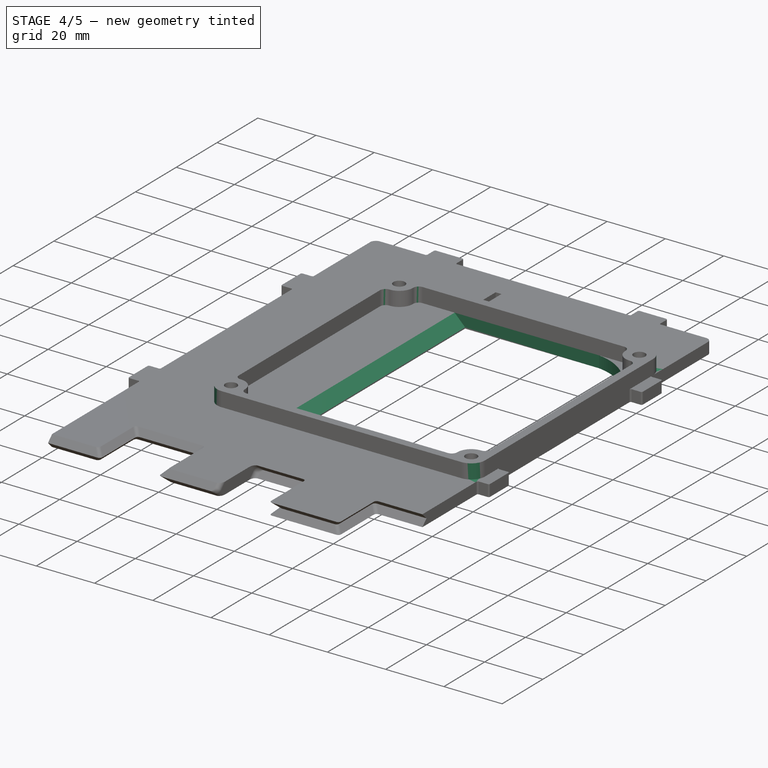
[diagram: stage 4 of 5 — iso view after this stage's code; geometry added in this stage tinted green]
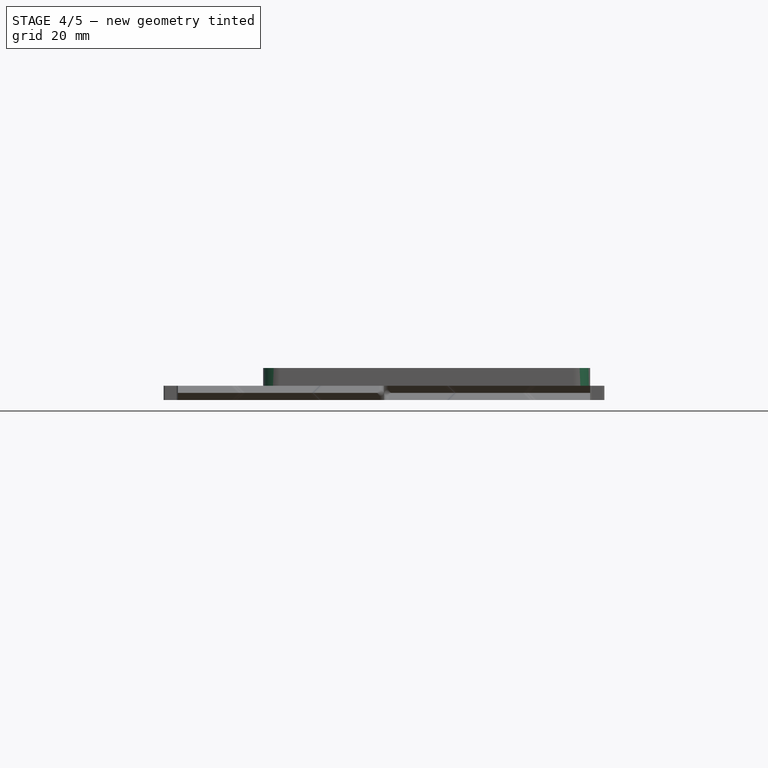
[diagram: stage 4 of 5 — front view after this stage's code; geometry added in this stage tinted green]
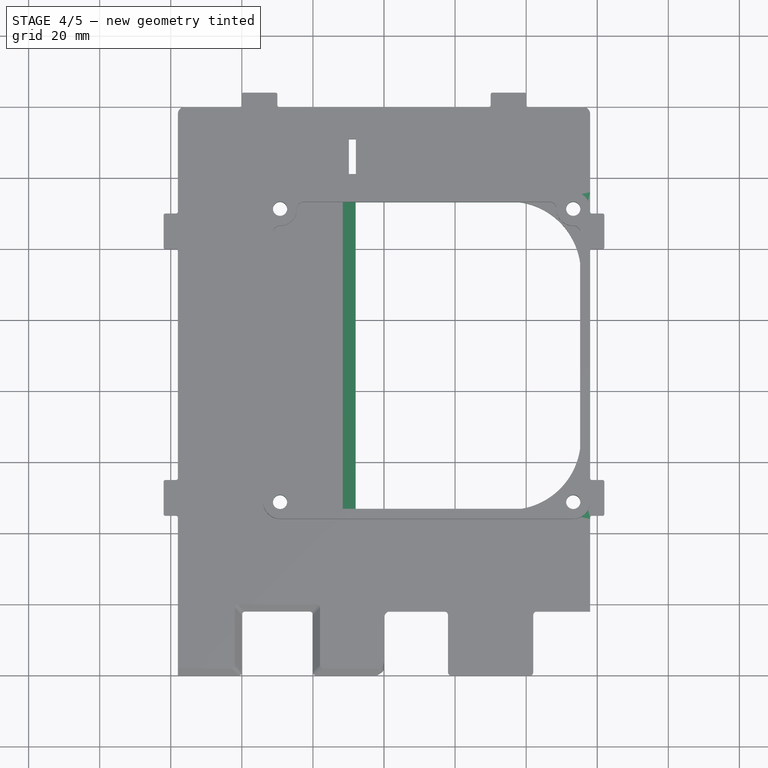
[diagram: stage 4 of 5 — top view after this stage's code; geometry added in this stage tinted green]
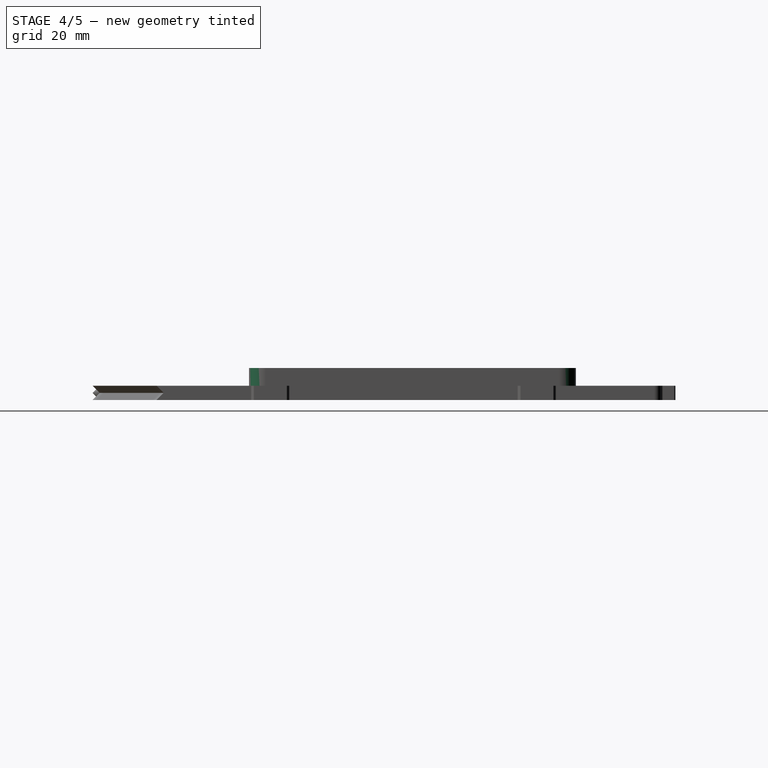
[diagram: stage 4 of 5 — right view after this stage's code; geometry added in this stage tinted green]
FEATURE [PartDesign::Fillet] Fillet007
  Base = -> Fillet006 [Edge43,Edge30,Edge46,Edge52,Edge49,Edge36,Edge33,Edge27]
  BaseFeature = -> Fillet006
  Radius = 1.9
FEATURE [PartDesign::Fillet] Fillet008
  Base = -> Fillet007 [Edge81,Edge82,Edge84,Edge90]
  BaseFeature = -> Fillet007
  Radius = 4.8
FEATURE [PartDesign::Pocket] Pocket003
  BaseFeature = -> Fillet008
  Length = 5
  Length2 = 100
  Profile = -> Sketch008
  Type = 1
FEATURE [PartDesign::Chamfer] Chamfer
  Base = -> Pocket003 [Edge206]
  BaseFeature = -> Pocket003
  Size = 3.6
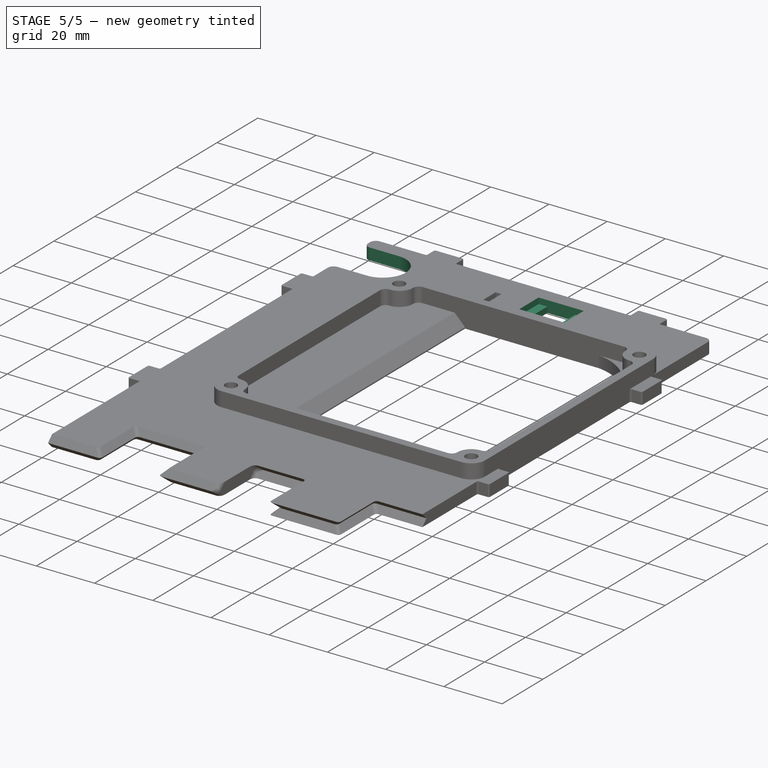
[diagram: stage 5 of 5 — iso view after this stage's code; geometry added in this stage tinted green]
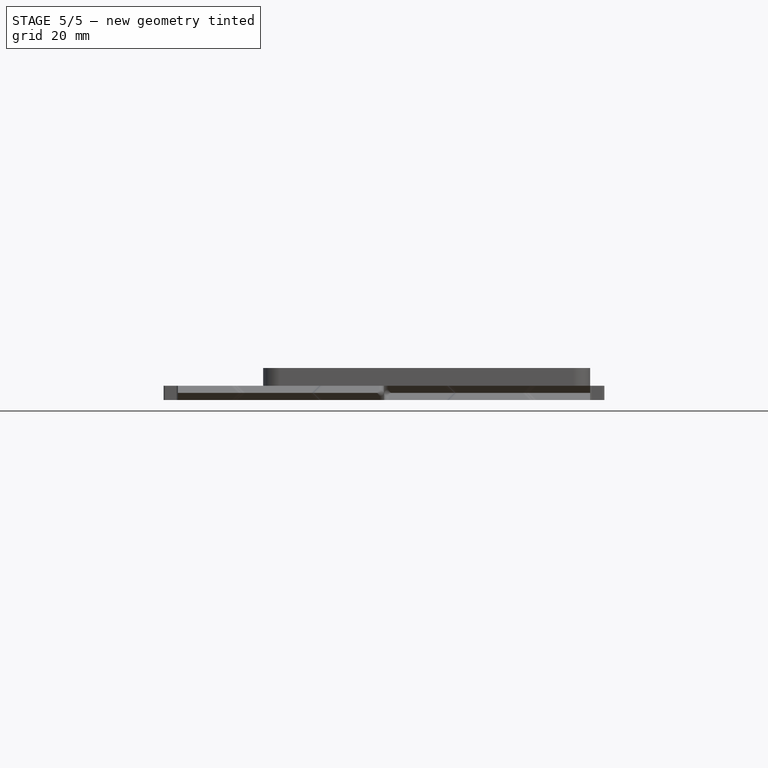
[diagram: stage 5 of 5 — front view after this stage's code; geometry added in this stage tinted green]
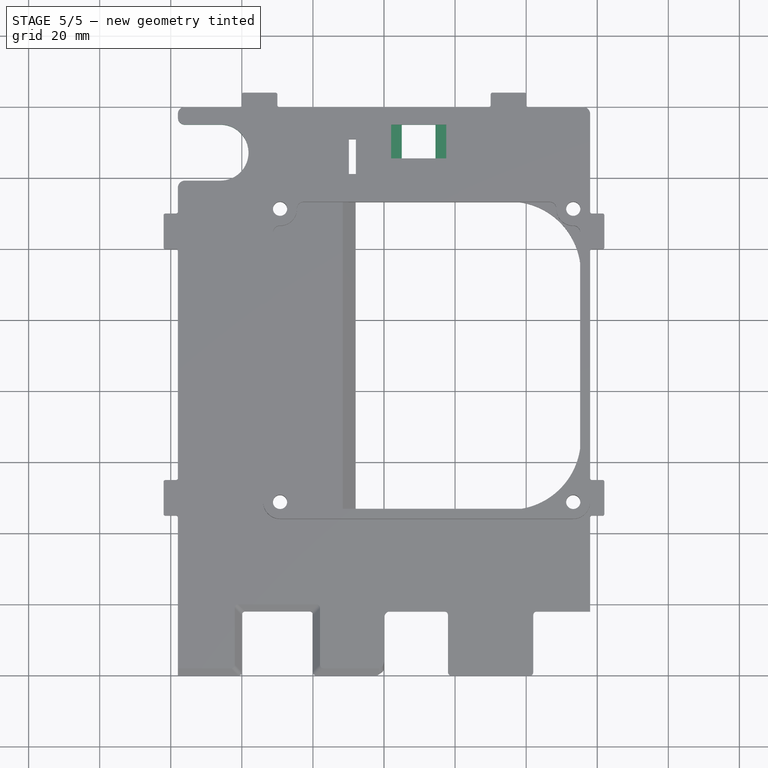
[diagram: stage 5 of 5 — top view after this stage's code; geometry added in this stage tinted green]
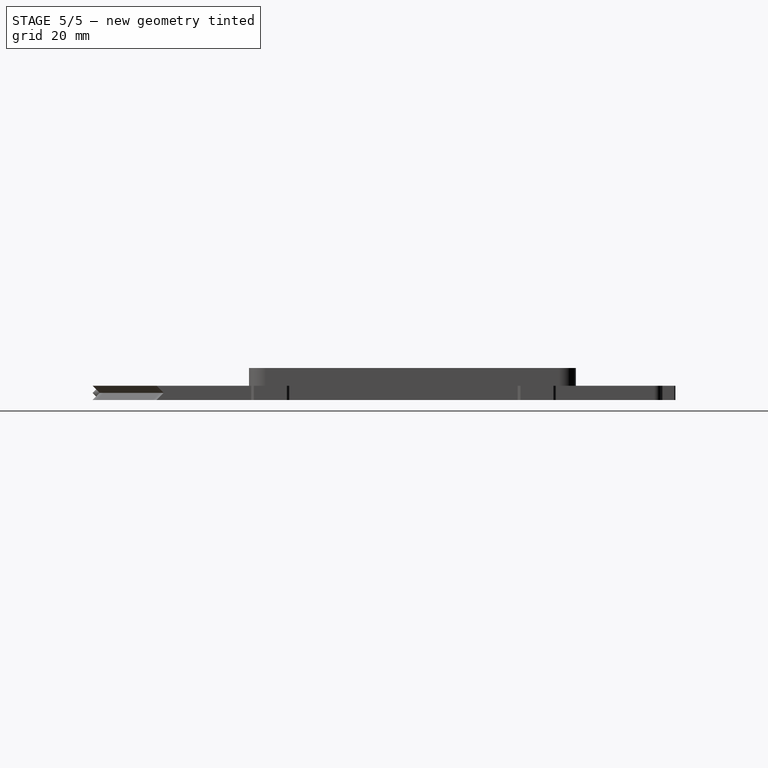
[diagram: stage 5 of 5 — right view after this stage's code; geometry added in this stage tinted green]
FEATURE [Sketcher::SketchObject] Sketch009
  MapMode = 5
  Support = -> [XY_Plane001]
  sketch-geometry (6):
    g0: ArcOfCircle CenterX=-46 CenterY=147.125 CenterZ=0 NormalX=0 NormalY=0 NormalZ=1 AngleXU=0 Radius=7.875 StartAngle=4.71239 EndAngle=7.85398
    g1: LineSegment StartX=-46 StartY=155 StartZ=0 EndX=-58 EndY=155 EndZ=0
    g2: LineSegment StartX=-46 StartY=139.25 StartZ=0 EndX=-58 EndY=139.25 EndZ=0
    g3: LineSegment StartX=-58 StartY=155 StartZ=0 EndX=-58 EndY=139.25 EndZ=0
    g4: LineSegment [constr] StartX=-46 StartY=155 StartZ=0 EndX=-46 EndY=139.25 EndZ=0
    g5: ArcOfCircle [constr] CenterX=-46 CenterY=147.125 CenterZ=0 NormalX=0 NormalY=0 NormalZ=1 AngleXU=0 Radius=7.875 StartAngle=1.5708 EndAngle=4.71239
  constraints (18):
    c: Coincident(g1,g0)
    c: Horizontal(g1)
    c: Coincident(g2,g0)
    c: Horizontal(g2)
    c: Coincident(g3,g1)
    c: Coincident(g3,g2)
    c: Vertical(g3)
    c: Coincident(g4,g0)
    c: Coincident(g4,g0)
    c: Vertical(g4)
    c: PointOnObject(g0,g4)
    c: Radius(g0) = 7.875
    c: Distance(g1) = 12
    c: Distance(g1,g-1) = 155
    c: Coincident(g5,g0)
    c: Coincident(g5,g0)
    c: Coincident(g5,g0)
    c: DistanceX(g-2,g2) = -58
FEATURE [PartDesign::Pocket] Pocket004
  BaseFeature = -> Chamfer
  Length = 5
  Length2 = 100
  Midplane = true
  Profile = -> Sketch009
  Type = 1
FEATURE [PartDesign::Fillet] Fillet009
  Base = -> Pocket004 [Edge233,Edge226]
  BaseFeature = -> Pocket004
  Radius = 2
FEATURE [Sketcher::SketchObject] Sketch010
  MapMode = 5
  Support = -> [XY_Plane001]
  sketch-geometry (4):
    g0: LineSegment StartX=5 StartY=155 StartZ=0 EndX=14.5 EndY=155 EndZ=0
    g1: LineSegment StartX=14.5 StartY=155 StartZ=0 EndX=14.5 EndY=145.5 EndZ=0
    g2: LineSegment StartX=14.5 StartY=145.5 StartZ=0 EndX=5 EndY=145.5 EndZ=0
    g3: LineSegment StartX=5 StartY=145.5 StartZ=0 EndX=5 EndY=155 EndZ=0
  constraints (12):
    c: Coincident(g0,g1)
    c: Coincident(g1,g2)
    c: Coincident(g2,g3)
    c: Coincident(g3,g0)
    c: Horizontal(g0)
    c: Horizontal(g2)
    c: Vertical(g1)
    c: Vertical(g3)
    c: Distance(g3) = 9.5
    c: Distance(g0) = 9.5
    c: DistanceX(g-2,g2) = 5
    c: Distance(g0,g-1) = 155
FEATURE [PartDesign::Pocket] Pocket005
  BaseFeature = -> Fillet009
  Length = 2
  Length2 = 100
  Profile = -> Sketch010
  Type = 1
FEATURE [Sketcher::SketchObject] Sketch011
  ExternalGeometry = -> [Sketch010]
  MapMode = 5
  Support = -> [XY_Plane001]
  sketch-geometry (4):
    g0: LineSegment StartX=2 StartY=145.5 StartZ=0 EndX=17.5 EndY=145.5 EndZ=0
    g1: LineSegment StartX=17.5 StartY=145.5 StartZ=0 EndX=17.5 EndY=155 EndZ=0
    g2: LineSegment StartX=17.5 StartY=155 StartZ=0 EndX=2 EndY=155 EndZ=0
    g3: LineSegment StartX=2 StartY=155 StartZ=0 EndX=2 EndY=145.5 EndZ=0
  constraints (12):
    c: Coincident(g0,g1)
    c: Coincident(g1,g2)
    c: Coincident(g2,g3)
    c: Coincident(g3,g0)
    c: Horizontal(g0)
    c: Horizontal(g2)
    c: Vertical(g1)
    c: Vertical(g3)
    c: PointOnObject(g-3,g2)
    c: PointOnObject(g-4,g0)
    c: Distance(g-4,g0) = 3
    c: Distance(g-3,g2) = 3
FEATURE [PartDesign::Pocket] Pocket006
  BaseFeature = -> Pocket005
  Length = 5
  Length2 = 100
  Profile = -> Sketch011
  Reversed = true
  Type = 1
FEATURE [PartDesign::Body] Body  label="BlockBody"
  Group = -> [Sketch,Pad,Sketch001,DatumPlane,DatumPlane001,Sketch002,Sketch003,SubtractiveLoft,Sketch004,Pocket,Sketch005,Pocket001,Fillet,Fillet001,Fillet002,Fillet003,Fillet004,Fillet005,Sketch007,Pocket002,Sketch006,DatumPlane002,Pad001,Fillet006,Fillet007,Fillet008,Sketch008,Pocket003,Chamfer,Sketch009,Pocket004,Fillet009,Sketch010,Pocket005,Sketch011,Pocket006]
  Origin = -> Origin001
  Tip = -> Pocket006
FEATURE [App::Part] Part  label="BlockPart"
  Group = -> [Body]
  Origin = -> Origin
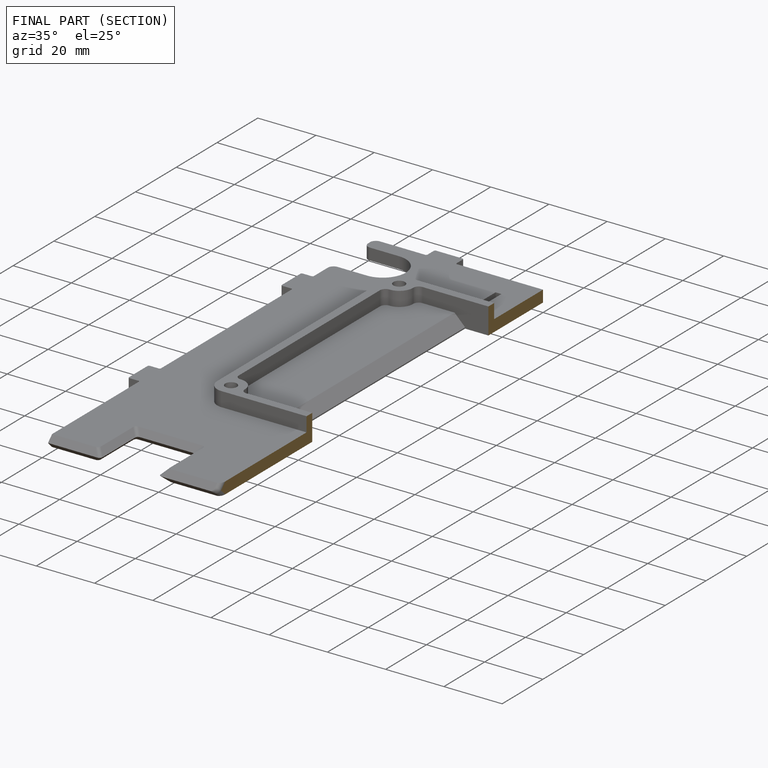
[diagram: finished part — half-section view (interior)]
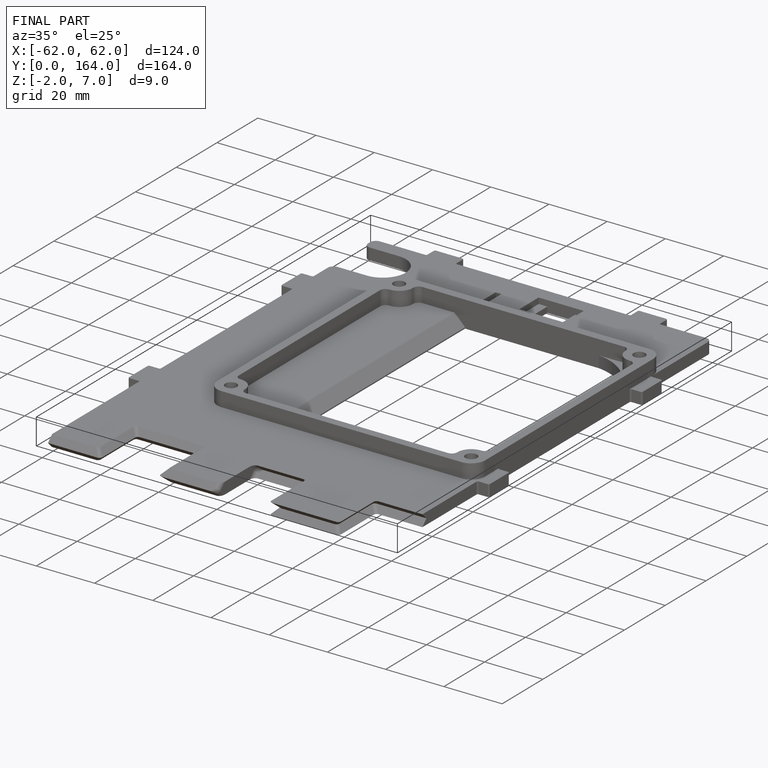
[diagram: finished part — iso view with bounding-box wireframe]
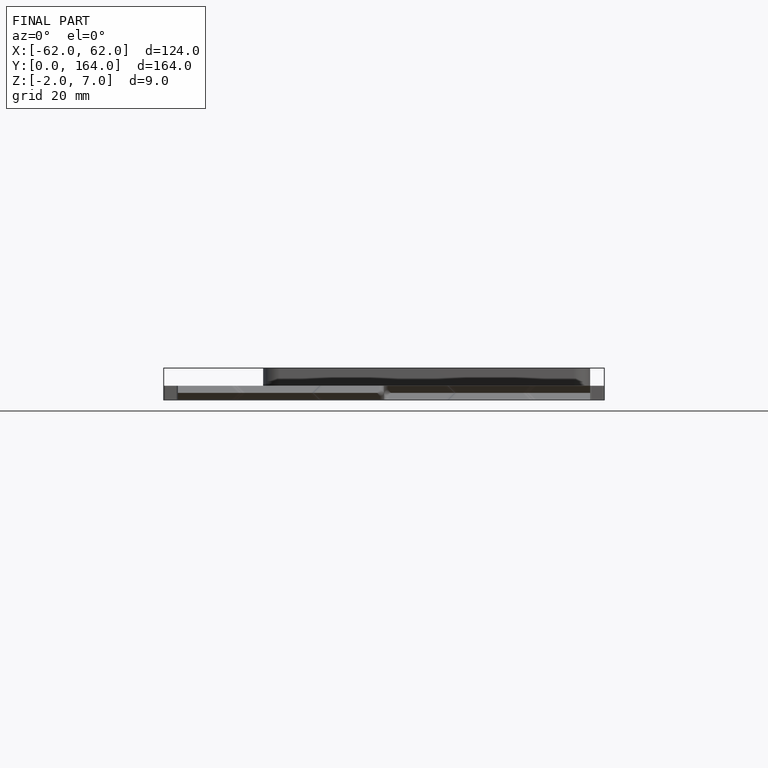
[diagram: finished part — front view with bounding-box wireframe]
